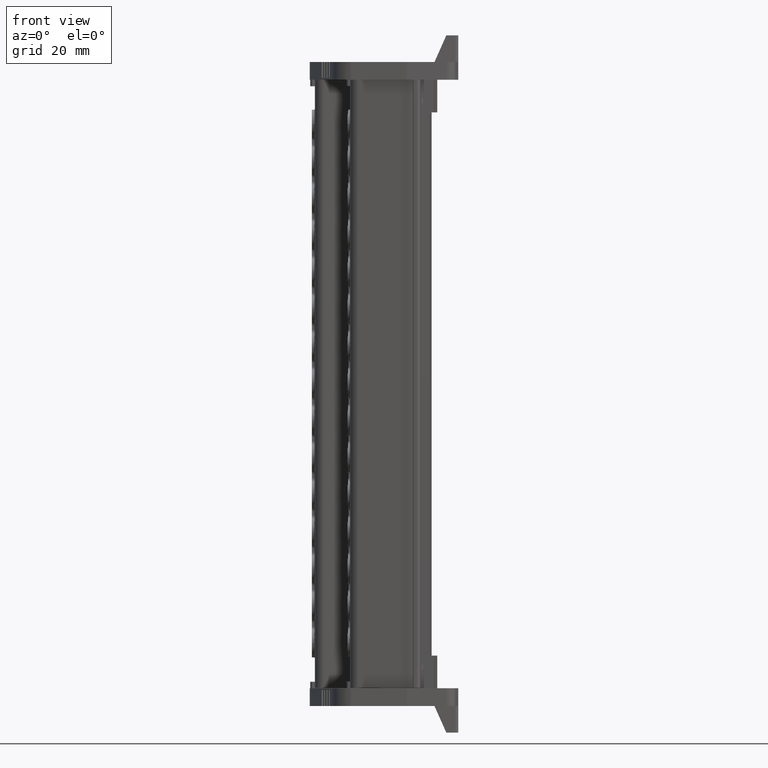
[diagram: clean part render]
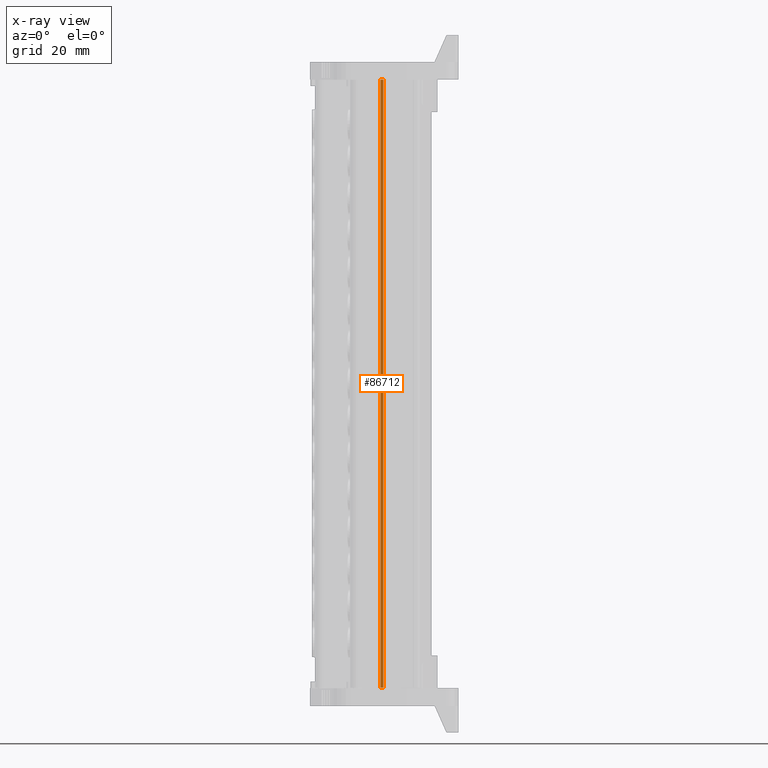
[diagram: x-ray — body ghosted, one internal face saturated and labeled with its STEP entity id]
A machine part, front view, then the same camera in x-ray: the body is ghosted and one INTERNAL B-rep face — a face not visible from any outside direction — is saturated and labeled: STEP entity #86712.
In plain terms, the highlighted planar face has unit normal (0.0262, 0.9997, 0).
Its self-contained STEP definition (entity closure, byte-faithful):
#9219 = VECTOR ( 'NONE', #21210, 1000.000000000000000 ) ;
#9276 = VECTOR ( 'NONE', #20153, 1000.000000000000000 ) ;
#17724 = CARTESIAN_POINT ( 'NONE',  ( 1890.073920969581600, 787.8052627972593900, 211.0203038005998100 ) ) ;
#17978 = CARTESIAN_POINT ( 'NONE',  ( 1890.073920957485400, 787.8052630946323200, 6.170753989984720400 ) ) ;
#18107 = CARTESIAN_POINT ( 'NONE',  ( 1890.073920951868600, 787.8052629461645900, 108.6552333052984800 ) ) ;
#20123 = CARTESIAN_POINT ( 'NONE',  ( 1890.073920956041100, 787.8052630394784000, 44.23084934700590100 ) ) ;
#20126 = LINE ( 'NONE', #20123, #9276 ) ;
#20153 = DIRECTION ( 'NONE',  ( -3.794580110802041300E-011, -1.449125500528243900E-009, 1.000000000000000000 ) ) ;
#21168 = CARTESIAN_POINT ( 'NONE',  ( 1890.073920953449700, 787.8052630395463900, 44.23084934700590100 ) ) ;
#21210 = DIRECTION ( 'NONE',  ( -3.794580110802041300E-011, -1.449125500528243900E-009, 1.000000000000000000 ) ) ;
#21213 = LINE ( 'NONE', #21168, #9219 ) ;
#29808 = ORIENTED_EDGE ( 'NONE', *, *, #34468, .F. ) ;
#29877 = ORIENTED_EDGE ( 'NONE', *, *, #51442, .F. ) ;
#29916 = ORIENTED_EDGE ( 'NONE', *, *, #34538, .F. ) ;
#29940 = ORIENTED_EDGE ( 'NONE', *, *, #51360, .F. ) ;
#29949 = ORIENTED_EDGE ( 'NONE', *, *, #34562, .F. ) ;
#34468 = EDGE_CURVE ( 'NONE', #80948, #51550, #52842, .T. ) ;
#34538 = EDGE_CURVE ( 'NONE', #52206, #80943, #53048, .T. ) ;
#34562 = EDGE_CURVE ( 'NONE', #80943, #80948, #53158, .T. ) ;
#41683 = CARTESIAN_POINT ( 'NONE',  ( 1891.124087650591700, 787.7777640792951400, 211.0203038020480100 ) ) ;
#41717 = CARTESIAN_POINT ( 'NONE',  ( 1891.124087585866200, 787.7777640068745800, 6.170753990004655500 ) ) ;
#47289 = EDGE_LOOP ( 'NONE', ( #29940, #29877, #29808, #29949, #29916 ) ) ;
#51360 = EDGE_CURVE ( 'NONE', #51596, #52206, #21213, .T. ) ;
#51442 = EDGE_CURVE ( 'NONE', #51550, #51596, #20126, .T. ) ;
#51550 = VERTEX_POINT ( 'NONE', #17978 ) ;
#51596 = VERTEX_POINT ( 'NONE', #18107 ) ;
#52206 = VERTEX_POINT ( 'NONE', #17724 ) ;
#52766 = CARTESIAN_POINT ( 'NONE',  ( 1879.001685223777300, 788.0951930246619700, 6.170753990004648400 ) ) ;
#52842 = LINE ( 'NONE', #52766, #89600 ) ;
#52856 = DIRECTION ( 'NONE',  ( -0.9996573409617226500, 0.02617633781372184800, 0.0000000000000000000 ) ) ;
#52985 = CARTESIAN_POINT ( 'NONE',  ( 1890.073920947767400, 787.8052627978306600, 211.0203038005998100 ) ) ;
#53046 = DIRECTION ( 'NONE',  ( 0.9996573446581620300, -0.02617619664871963900, 0.0000000000000000000 ) ) ;
#53048 = LINE ( 'NONE', #52985, #89670 ) ;
#53114 = CARTESIAN_POINT ( 'NONE',  ( 1891.124087583920500, 787.7777641002531900, 173.0796172645337900 ) ) ;
#53158 = LINE ( 'NONE', #53114, #89688 ) ;
#53200 = DIRECTION ( 'NONE',  ( -6.089757720685865200E-016, -1.449294126440708300E-009, -1.000000000000000000 ) ) ;
#61658 = AXIS2_PLACEMENT_3D ( 'NONE', #70673, #70690, #70691 ) ;
#70673 = CARTESIAN_POINT ( 'NONE',  ( 1879.001685222333000, 788.0951929695081600, 44.23084934700590100 ) ) ;
#70690 = DIRECTION ( 'NONE',  ( 0.02617633781372185100, 0.9996573409617227600, 1.449622226686305800E-009 ) ) ;
#70691 = DIRECTION ( 'NONE',  ( -0.9996573409617226500, 0.02617633781372184800, 0.0000000000000000000 ) ) ;
#70731 = PLANE ( 'NONE',  #61658 ) ;
#70736 = FACE_OUTER_BOUND ( 'NONE', #47289, .T. ) ;
#80943 = VERTEX_POINT ( 'NONE', #41683 ) ;
#80948 = VERTEX_POINT ( 'NONE', #41717 ) ;
#86712 = ADVANCED_FACE ( 'NONE', ( #70736 ), #70731, .F. ) ;
#89600 = VECTOR ( 'NONE', #52856, 1000.000000000000100 ) ;
#89670 = VECTOR ( 'NONE', #53046, 1000.000000000000100 ) ;
#89688 = VECTOR ( 'NONE', #53200, 1000.000000000000000 ) ;